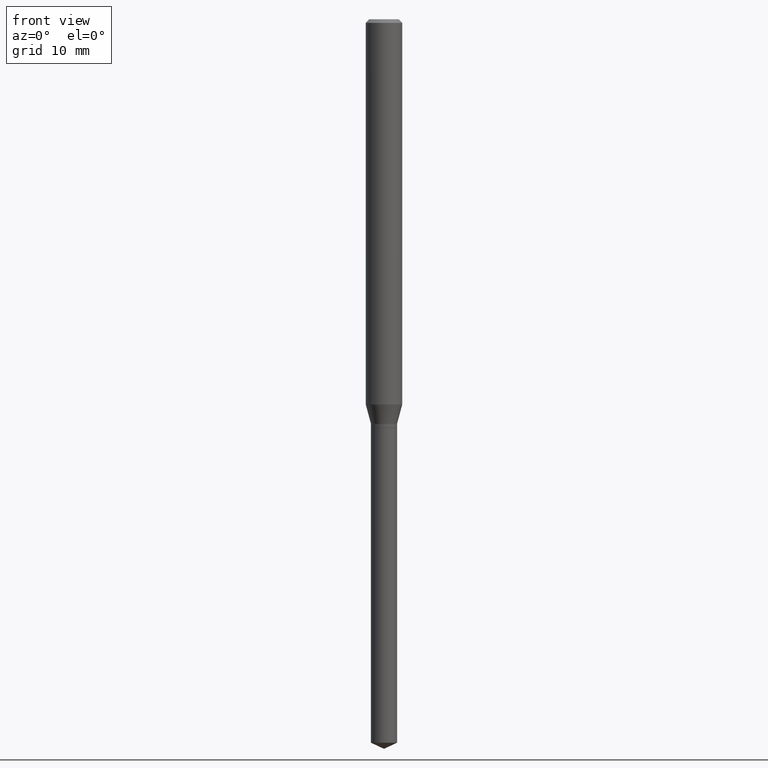
[diagram: clean part render]
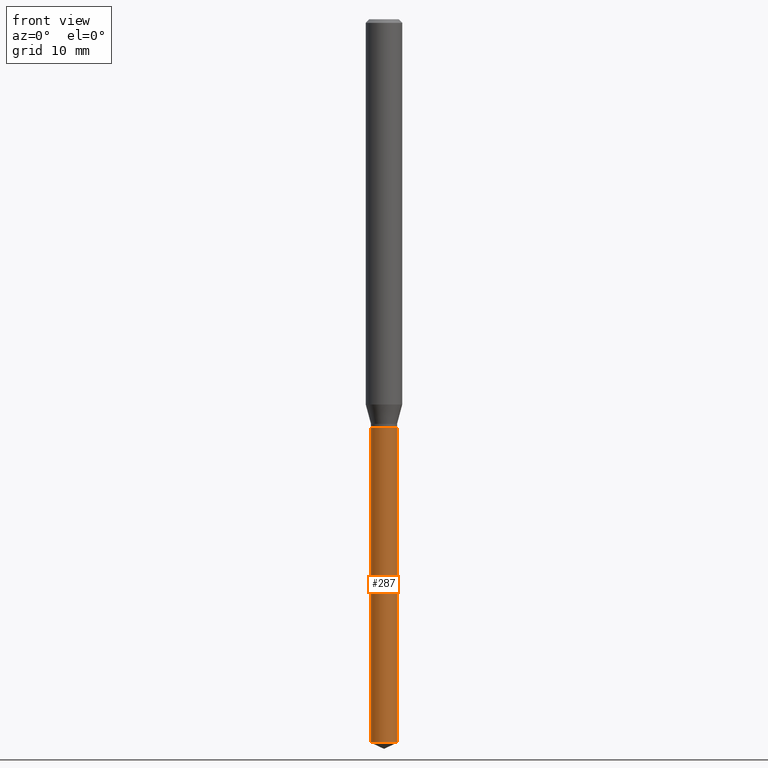
[diagram: same view with one face highlighted and labeled with its STEP entity id]
A machine part, front view. The second image highlights one B-rep face of the part: STEP entity #287.
In plain terms, the highlighted cylindrical surface (edge-blend (fillet) strip) has radius 1.0744 mm, axis along (-0, 0, 1).
Its self-contained STEP definition (entity closure, byte-faithful):
#9 = VERTEX_POINT ( 'NONE', #319 ) ;
#40 = CYLINDRICAL_SURFACE ( 'NONE', #50, 0.04229999999999999732 ) ;
#50 = AXIS2_PLACEMENT_3D ( 'NONE', #441, #341, #93 ) ;
#60 = DIRECTION ( 'NONE',  ( 1.000000000000000000, -6.982962677686266711E-15, 0.000000000000000000 ) ) ;
#62 = DIRECTION ( 'NONE',  ( -2.445468806185136877E-29, 3.491481338843145188E-15, 1.000000000000000000 ) ) ;
#64 = AXIS2_PLACEMENT_3D ( 'NONE', #101, #257, #410 ) ;
#70 = CARTESIAN_POINT ( 'NONE',  ( 3.234377043060460432E-29, -4.617833218753942678E-15, -1.322599999999999776 ) ) ;
#73 = EDGE_CURVE ( 'NONE', #215, #128, #221, .T. ) ;
#75 = CIRCLE ( 'NONE', #64, 0.04229999999999999732 ) ;
#92 = AXIS2_PLACEMENT_3D ( 'NONE', #70, #258, #60 ) ;
#93 = DIRECTION ( 'NONE',  ( 1.000000000000000000, -6.982962677686266711E-15, 0.000000000000000000 ) ) ;
#101 = CARTESIAN_POINT ( 'NONE',  ( 5.727960903011324402E-29, -8.178010102564001192E-15, -2.342275186060044145 ) ) ;
#106 = CARTESIAN_POINT ( 'NONE',  ( 0.04229999999999999732, -4.913212540020072126E-15, -1.322599999999999776 ) ) ;
#107 = ORIENTED_EDGE ( 'NONE', *, *, #291, .F. ) ;
#115 = EDGE_CURVE ( 'NONE', #215, #297, #75, .T. ) ;
#118 = LINE ( 'NONE', #106, #479 ) ;
#128 = VERTEX_POINT ( 'NONE', #424 ) ;
#130 = CIRCLE ( 'NONE', #92, 0.04229999999999999732 ) ;
#146 = EDGE_LOOP ( 'NONE', ( #477, #240, #409, #107 ) ) ;
#202 = EDGE_CURVE ( 'NONE', #297, #9, #118, .T. ) ;
#206 = VECTOR ( 'NONE', #62, 39.37007874015748143 ) ;
#209 = FACE_OUTER_BOUND ( 'NONE', #146, .T. ) ;
#215 = VERTEX_POINT ( 'NONE', #344 ) ;
#221 = LINE ( 'NONE', #404, #206 ) ;
#240 = ORIENTED_EDGE ( 'NONE', *, *, #115, .T. ) ;
#253 = CARTESIAN_POINT ( 'NONE',  ( 0.04229999999999999732, -8.473389423830130639E-15, -2.342275186060044145 ) ) ;
#257 = DIRECTION ( 'NONE',  ( -2.445468806185136597E-29, 3.491481338843145583E-15, 1.000000000000000000 ) ) ;
#258 = DIRECTION ( 'NONE',  ( -2.445468806185136597E-29, 3.491481338843145583E-15, 1.000000000000000000 ) ) ;
#287 = ADVANCED_FACE ( 'NONE', ( #209 ), #40, .T. ) ;
#291 = EDGE_CURVE ( 'NONE', #128, #9, #130, .T. ) ;
#297 = VERTEX_POINT ( 'NONE', #253 ) ;
#319 = CARTESIAN_POINT ( 'NONE',  ( 0.04229999999999999732, -4.913212540020072126E-15, -1.322599999999999776 ) ) ;
#341 = DIRECTION ( 'NONE',  ( -2.445468806185136597E-29, 3.491481338843145583E-15, 1.000000000000000000 ) ) ;
#344 = CARTESIAN_POINT ( 'NONE',  ( -0.04229999999999999732, -7.877450525337478783E-15, -2.342275186060044145 ) ) ;
#404 = CARTESIAN_POINT ( 'NONE',  ( -0.04229999999999999732, -4.317273641527420269E-15, -1.322599999999999776 ) ) ;
#409 = ORIENTED_EDGE ( 'NONE', *, *, #202, .T. ) ;
#410 = DIRECTION ( 'NONE',  ( 1.000000000000000000, -6.982962677686266711E-15, 0.000000000000000000 ) ) ;
#424 = CARTESIAN_POINT ( 'NONE',  ( -0.04229999999999999732, -6.097362083432448737E-15, -1.322599999999999776 ) ) ;
#441 = CARTESIAN_POINT ( 'NONE',  ( 3.234377043060460432E-29, -4.617833218753942678E-15, -1.322599999999999776 ) ) ;
#465 = DIRECTION ( 'NONE',  ( -2.445468806185136877E-29, 3.491481338843145188E-15, 1.000000000000000000 ) ) ;
#477 = ORIENTED_EDGE ( 'NONE', *, *, #73, .F. ) ;
#479 = VECTOR ( 'NONE', #465, 39.37007874015748143 ) ;